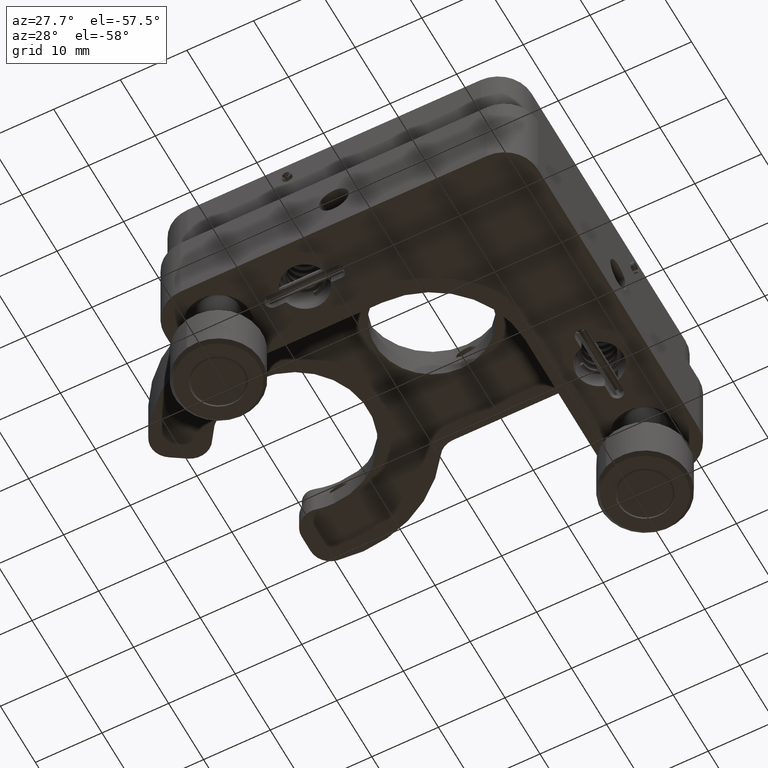
[diagram: clean part render]
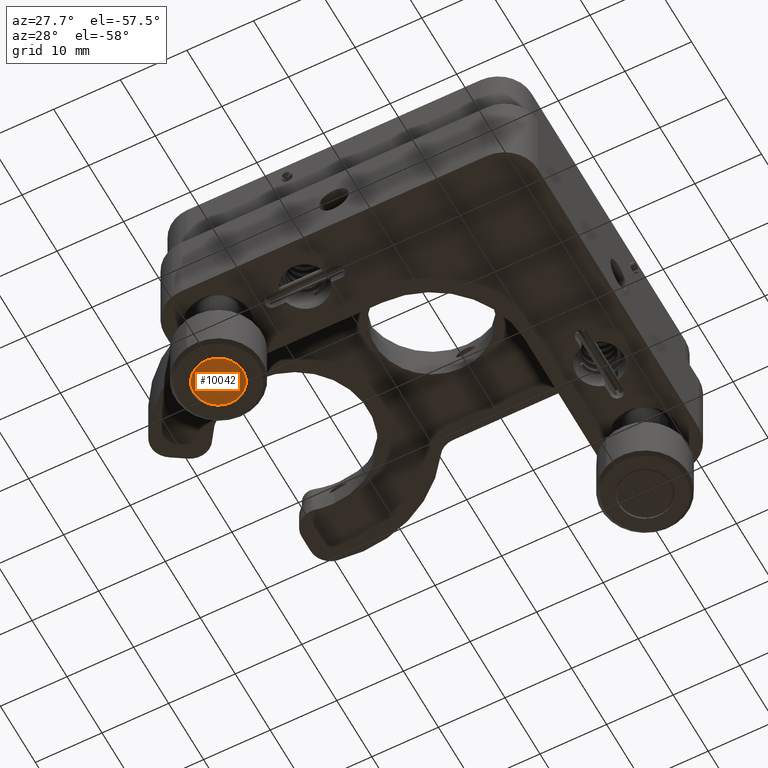
[diagram: same view with one face highlighted and labeled with its STEP entity id]
A machine part, auxiliary view. The second image highlights one B-rep face of the part: STEP entity #10042.
In plain terms, the highlighted planar face has unit normal (0, -0, -1).
Its self-contained STEP definition (entity closure, byte-faithful):
#817 = DIRECTION ( 'NONE',  ( 1.126968827495845300E-016, -6.732456175728140000E-017, -1.000000000000000000 ) ) ;
#1657 = ORIENTED_EDGE ( 'NONE', *, *, #9123, .T. ) ;
#1801 = DIRECTION ( 'NONE',  ( 1.126968827495847000E-016, -6.732456175728061100E-017, -1.000000000000000000 ) ) ;
#2471 = CARTESIAN_POINT ( 'NONE',  ( -20.99999999999998200, -21.00000000000000000, -28.99842711999999900 ) ) ;
#3255 = EDGE_CURVE ( 'NONE', #13519, #16982, #3456, .T. ) ;
#3456 = CIRCLE ( 'NONE', #18086, 3.700000000000047300 ) ;
#3508 = FACE_OUTER_BOUND ( 'NONE', #5515, .T. ) ;
#5515 = EDGE_LOOP ( 'NONE', ( #1657, #13960 ) ) ;
#7015 = DIRECTION ( 'NONE',  ( 1.126968827495847000E-016, -6.732456175728061100E-017, -1.000000000000000000 ) ) ;
#7207 = CIRCLE ( 'NONE', #10012, 3.700000000000047300 ) ;
#9123 = EDGE_CURVE ( 'NONE', #16982, #13519, #7207, .T. ) ;
#10012 = AXIS2_PLACEMENT_3D ( 'NONE', #12596, #7015, #20163 ) ;
#10042 = ADVANCED_FACE ( 'NONE', ( #3508 ), #13242, .T. ) ;
#12209 = CARTESIAN_POINT ( 'NONE',  ( -21.80898659552889300, -24.61047651816971500, -28.99842711999999900 ) ) ;
#12596 = CARTESIAN_POINT ( 'NONE',  ( -20.99999999999998200, -21.00000000000000000, -28.99842711999999900 ) ) ;
#13242 = PLANE ( 'NONE',  #19589 ) ;
#13519 = VERTEX_POINT ( 'NONE', #12209 ) ;
#13960 = ORIENTED_EDGE ( 'NONE', *, *, #3255, .T. ) ;
#14368 = DIRECTION ( 'NONE',  ( -0.2186450258186211600, -0.9758044643701803100, 0.0000000000000000000 ) ) ;
#15104 = DIRECTION ( 'NONE',  ( -0.2186450258186210800, -0.9758044643701804200, 4.105499508606009300E-017 ) ) ;
#16982 = VERTEX_POINT ( 'NONE', #19736 ) ;
#17309 = CARTESIAN_POINT ( 'NONE',  ( -20.99999999999998200, -21.00000000000000000, -28.99842711999999900 ) ) ;
#18086 = AXIS2_PLACEMENT_3D ( 'NONE', #17309, #1801, #14368 ) ;
#19589 = AXIS2_PLACEMENT_3D ( 'NONE', #2471, #817, #15104 ) ;
#19736 = CARTESIAN_POINT ( 'NONE',  ( -20.19101340447107500, -17.38952348183028800, -28.99842711999999900 ) ) ;
#20163 = DIRECTION ( 'NONE',  ( -0.2186450258186211600, -0.9758044643701803100, 0.0000000000000000000 ) ) ;